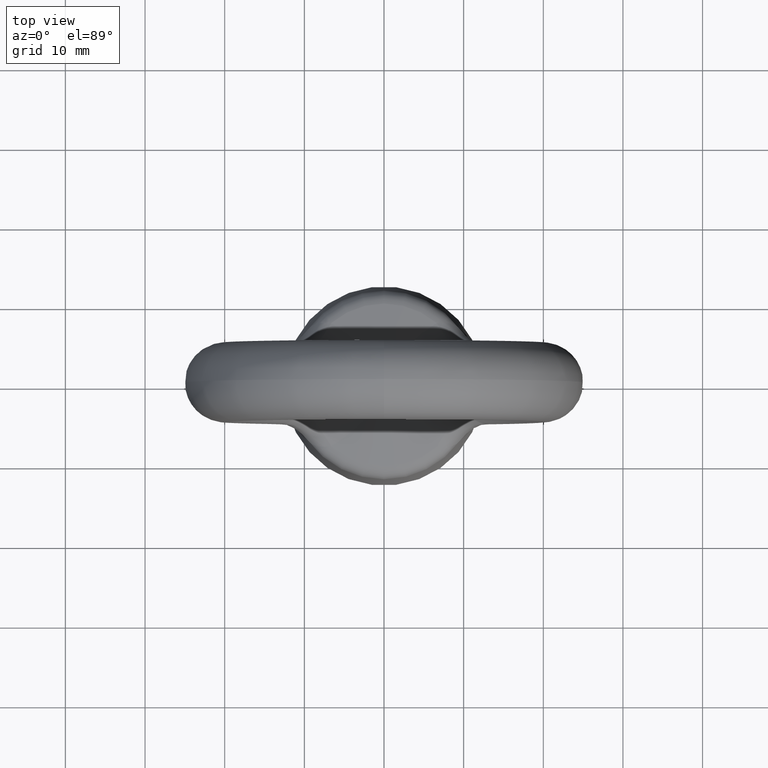
[diagram: clean part render]
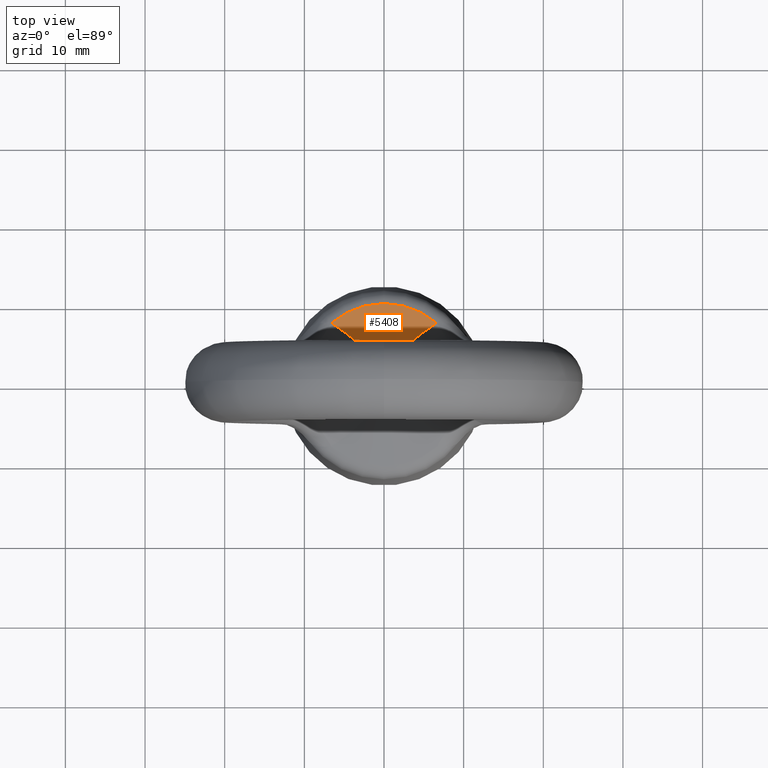
[diagram: same view with one face highlighted and labeled with its STEP entity id]
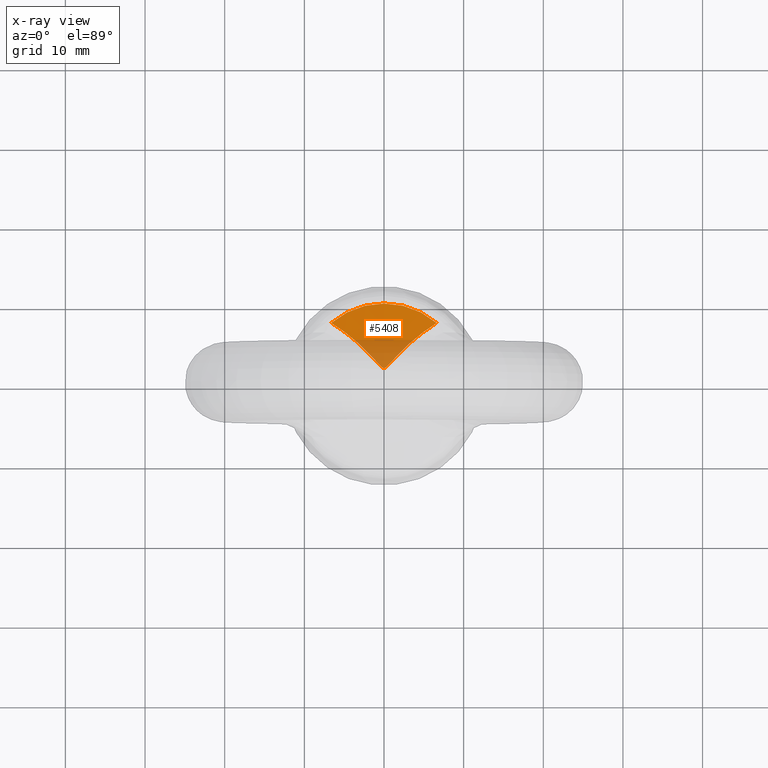
[diagram: x-ray of the same camera — body ghosted, the highlighted face saturated]
A machine part, top view. The second image highlights one B-rep face of the part: STEP entity #5408.
The next image is the same camera in x-ray: the body ghosted, the highlighted face saturated — about 23% of this face is hidden behind the body in this view.
In plain terms, the highlighted conical surface has half-angle 80.31 deg.
Its self-contained STEP definition (entity closure, byte-faithful):
#1232 = CARTESIAN_POINT ( 'NONE',  ( -6.616645683539579700, 7.751372220779610500, -16.74023616556295100 ) ) ;
#5408 = ADVANCED_FACE ( 'NONE', ( #7072 ), #7069, .T. ) ;
#5412 = EDGE_CURVE ( 'NONE', #5436, #5419, #7140, .T. ) ;
#5416 = EDGE_LOOP ( 'NONE', ( #5417, #5437 ) ) ;
#5417 = ORIENTED_EDGE ( 'NONE', *, *, #5418, .T. ) ;
#5418 = EDGE_CURVE ( 'NONE', #5419, #5436, #7105, .T. ) ;
#5419 = VERTEX_POINT ( 'NONE', #7175 ) ;
#5436 = VERTEX_POINT ( 'NONE', #1232 ) ;
#5437 = ORIENTED_EDGE ( 'NONE', *, *, #5412, .T. ) ;
#7066 = DIRECTION ( 'NONE',  ( -1.000000000000000000, 0.0000000000000000000, 0.0000000000000000000 ) ) ;
#7067 = DIRECTION ( 'NONE',  ( 0.0000000000000000000, 0.0000000000000000000, -1.000000000000000000 ) ) ;
#7068 = AXIS2_PLACEMENT_3D ( 'NONE', #7071, #7067, #7066 ) ;
#7069 = CONICAL_SURFACE ( 'NONE', #7068, 5856.307255231139600, 1.401671430174848500 ) ;
#7071 = CARTESIAN_POINT ( 'NONE',  ( 0.0000000000000000000, 0.0000000000000000000, -1014.999999999999900 ) ) ;
#7072 = FACE_OUTER_BOUND ( 'NONE', #5416, .T. ) ;
#7105 = CIRCLE ( 'NONE', #7178, 10.19135768220194100 ) ;
#7106 = CARTESIAN_POINT ( 'NONE',  ( 0.0000000000000000000, 0.0000000000000000000, -16.74023616556295100 ) ) ;
#7107 = CARTESIAN_POINT ( 'NONE',  ( 6.616645683539579700, 7.751372220779610500, -16.74023616556295100 ) ) ;
#7108 = CARTESIAN_POINT ( 'NONE',  ( 5.367141197293416400, 6.976013957203949000, -16.50101484175742100 ) ) ;
#7109 = CARTESIAN_POINT ( 'NONE',  ( 4.210906690400619800, 6.080006838553742900, -16.26101182634754100 ) ) ;
#7110 = CARTESIAN_POINT ( 'NONE',  ( 2.587703929125830800, 4.592389477405340000, -15.89944507746312800 ) ) ;
#7111 = CARTESIAN_POINT ( 'NONE',  ( 2.067561046388280300, 4.073117427935979900, -15.77890683053099400 ) ) ;
#7112 = CARTESIAN_POINT ( 'NONE',  ( 1.316248626441922200, 3.266640667052451700, -15.60102835001777800 ) ) ;
#7113 = CARTESIAN_POINT ( 'NONE',  ( 1.071700933255036500, 2.992348643613373000, -15.54208131996510300 ) ) ;
#7114 = CARTESIAN_POINT ( 'NONE',  ( 0.7015572460571938300, 2.583265629033149900, -15.45688923670987900 ) ) ;
#7115 = CARTESIAN_POINT ( 'NONE',  ( 0.5782003796957487800, 2.446281711846130900, -15.42884015753486600 ) ) ;
#7116 = CARTESIAN_POINT ( 'NONE',  ( 0.3786119270881019800, 2.255373671710446000, -15.39040125959843400 ) ) ;
#7117 = CARTESIAN_POINT ( 'NONE',  ( 0.3090830389255819200, 2.193260599419052600, -15.37801718844195500 ) ) ;
#7118 = CARTESIAN_POINT ( 'NONE',  ( 0.1933981787363673600, 2.118086760376419100, -15.36312971426283300 ) ) ;
#7119 = CARTESIAN_POINT ( 'NONE',  ( 0.1530541094032610600, 2.096238207192658200, -15.35882201326403500 ) ) ;
#7120 = CARTESIAN_POINT ( 'NONE',  ( 0.06474119676925374500, 2.066285940073892700, -15.35292651895569800 ) ) ;
#7121 = CARTESIAN_POINT ( 'NONE',  ( 0.01627793661514307200, 2.059451288227589000, -15.35158577248502200 ) ) ;
#7122 = CARTESIAN_POINT ( 'NONE',  ( -0.07653476307291433300, 2.068435276319645900, -15.35335100093347700 ) ) ;
#7123 = CARTESIAN_POINT ( 'NONE',  ( -0.1220456919535846300, 2.083702226158763900, -15.35635062577059400 ) ) ;
#7124 = CARTESIAN_POINT ( 'NONE',  ( -0.2044985292946817600, 2.124003563204404500, -15.36430106115630200 ) ) ;
#7125 = CARTESIAN_POINT ( 'NONE',  ( -0.2428639497536743700, 2.149083023770155300, -15.36926133351211900 ) ) ;
#7126 = CARTESIAN_POINT ( 'NONE',  ( -0.3538037476452844400, 2.231470650739074500, -15.38563040909700800 ) ) ;
#7127 = CARTESIAN_POINT ( 'NONE',  ( -0.4210003895125240500, 2.294475604581227100, -15.39824235379858300 ) ) ;
#7128 = CARTESIAN_POINT ( 'NONE',  ( -0.6158362287295687800, 2.487242760306062300, -15.43719461648426400 ) ) ;
#7129 = CARTESIAN_POINT ( 'NONE',  ( -0.7378100892118509800, 2.623026958242528700, -15.46509642732443400 ) ) ;
#7130 = CARTESIAN_POINT ( 'NONE',  ( -1.104510400847015900, 3.029383818290055400, -15.54997707783717500 ) ) ;
#7131 = CARTESIAN_POINT ( 'NONE',  ( -1.347718799001109900, 3.301101414449167000, -15.60851581800234700 ) ) ;
#7132 = CARTESIAN_POINT ( 'NONE',  ( -2.093556137367118100, 4.099532292712082100, -15.78498110095592800 ) ) ;
#7133 = CARTESIAN_POINT ( 'NONE',  ( -2.609031527314941400, 4.612801712913866800, -15.90428582348324000 ) ) ;
#7134 = CARTESIAN_POINT ( 'NONE',  ( -3.683011880505892700, 5.595312439206368000, -16.14333081388702600 ) ) ;
#7135 = CARTESIAN_POINT ( 'NONE',  ( -4.242140297823727500, 6.065706902614117300, -16.26345732501077300 ) ) ;
#7136 = CARTESIAN_POINT ( 'NONE',  ( -5.398496998126848500, 6.950924027309923800, -16.50244611368095700 ) ) ;
#7137 = CARTESIAN_POINT ( 'NONE',  ( -5.996401609160639800, 7.366490554649442600, -16.62148860587932800 ) ) ;
#7138 = CARTESIAN_POINT ( 'NONE',  ( -6.616645683539579700, 7.751372220779610500, -16.74023616556295100 ) ) ;
#7140 = B_SPLINE_CURVE_WITH_KNOTS ( 'NONE', 3,
 ( #7138, #7137, #7136, #7135, #7134, #7133, #7132, #7131, #7130, #7129, #7128, #7127, #7126, #7125, #7124, #7123, #7122, #7121, #7120, #7119, #7118, #7117, #7116, #7115, #7114, #7113, #7112, #7111, #7110, #7109, #7108, #7107 ),
 .UNSPECIFIED., .F., .F.,
 ( 4, 2, 2, 2, 2, 2, 2, 2, 2, 2, 2, 2, 2, 2, 2, 4 ),
 ( 8.673617379884035500E-018, 0.002212956907145378600, 0.004425913814290748600, 0.006638870721436119000, 0.007745349175008804700, 0.008298588401795146600, 0.008575208015188316700, 0.008713517821884902600, 0.008851827628581488600, 0.008990137435278074500, 0.009128447241974660400, 0.009405066855367832200, 0.009958306082154175900, 0.01106478453572686200, 0.01327774144287223800, 0.01770365525716299100 ),
 .UNSPECIFIED. ) ;
#7175 = CARTESIAN_POINT ( 'NONE',  ( 6.616645683539579700, 7.751372220779610500, -16.74023616556295100 ) ) ;
#7176 = DIRECTION ( 'NONE',  ( 1.000000000000000000, 0.0000000000000000000, 0.0000000000000000000 ) ) ;
#7177 = DIRECTION ( 'NONE',  ( 0.0000000000000000000, 0.0000000000000000000, 1.000000000000000000 ) ) ;
#7178 = AXIS2_PLACEMENT_3D ( 'NONE', #7106, #7177, #7176 ) ;